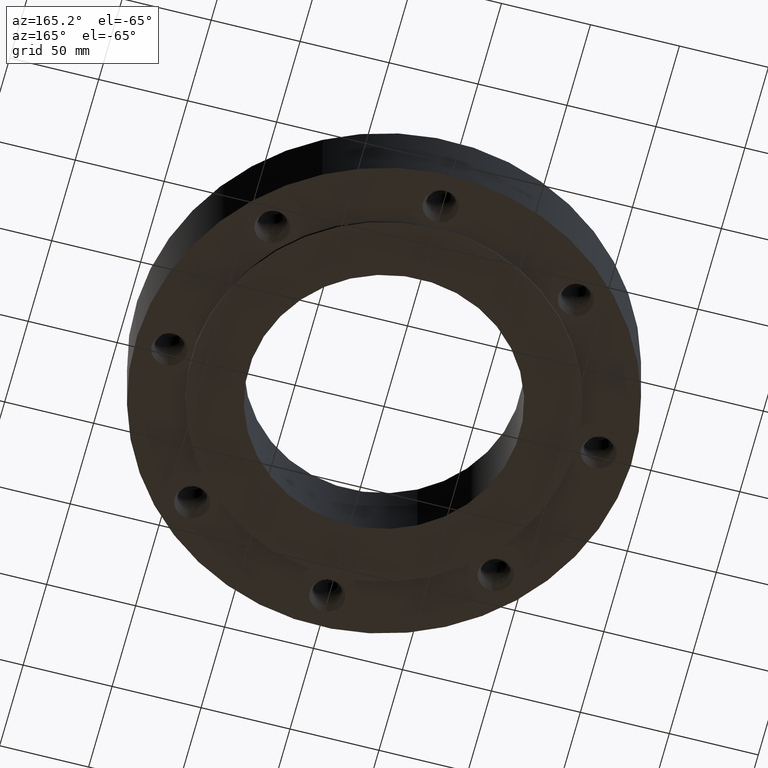
[diagram: clean part render]
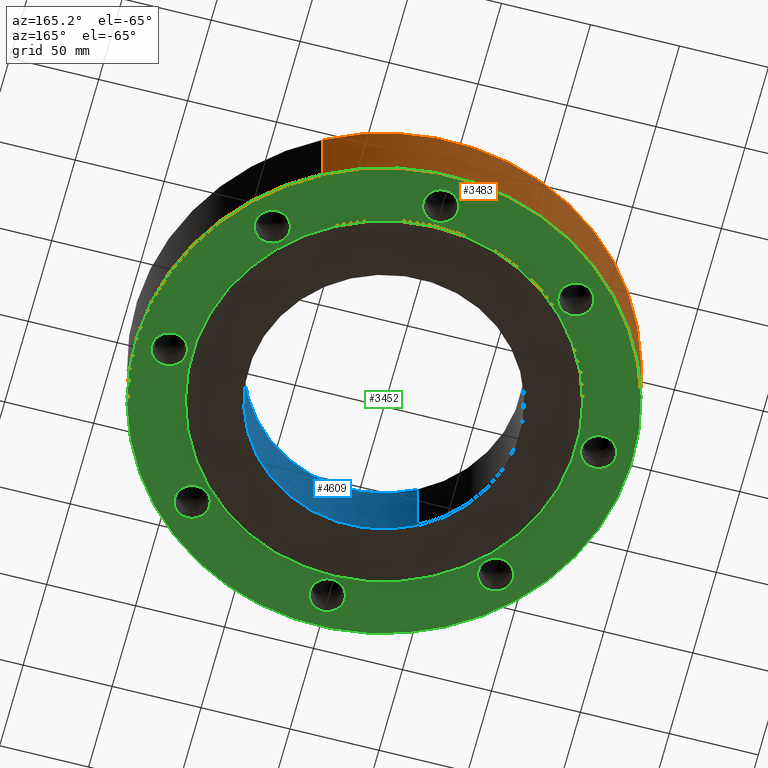
[diagram: same view with three faces highlighted in distinct colors, each labeled with its STEP entity id]
A machine part, auxiliary view with three faces highlighted in distinct colors.
Their STEP definitions:

[orange] entity #3483 — the highlighted cylindrical surface (partial cylindrical patch) has radius 139.7 mm, axis along (0, 0, -1).
#3288=AXIS2_PLACEMENT_3D('Circle Axis2P3D',#3286,#3287,$) ;
#3456=AXIS2_PLACEMENT_3D('Cylinder Axis2P3D',#3453,#3454,#3455) ;
#3467=AXIS2_PLACEMENT_3D('Circle Axis2P3D',#3465,#3466,$) ;
#3286=CARTESIAN_POINT('Axis2P3D Location',(0.,0.,0.)) ;
#3290=CARTESIAN_POINT('Vertex',(-2.63684046233,-4.82670409042,-4.22409264172E-014)) ;
#3292=CARTESIAN_POINT('Vertex',(2.63684046233,4.82670409042,-4.22409264172E-014)) ;
#3453=CARTESIAN_POINT('Axis2P3D Location',(0.,0.,0.843750000003)) ;
#3458=CARTESIAN_POINT('Line Origine',(-2.63684046233,-4.82670409042,0.875000000003)) ;
#3462=CARTESIAN_POINT('Vertex',(-2.63684046233,-4.82670409042,1.75000000001)) ;
#3465=CARTESIAN_POINT('Axis2P3D Location',(0.,0.,1.75000000001)) ;
#3469=CARTESIAN_POINT('Vertex',(2.63684046233,4.82670409042,1.75000000001)) ;
#3472=CARTESIAN_POINT('Line Origine',(2.63684046233,4.82670409042,0.875000000003)) ;
#3287=DIRECTION('Axis2P3D Direction',(0.,0.,-0.0393700787402)) ;
#3454=DIRECTION('Axis2P3D Direction',(0.,0.,-0.0393700787402)) ;
#3455=DIRECTION('Axis2P3D XDirection',(0.0188750212049,0.0345504945626,0.)) ;
#3459=DIRECTION('Vector Direction',(0.,0.,-0.0393700787402)) ;
#3466=DIRECTION('Axis2P3D Direction',(0.,0.,-0.0393700787402)) ;
#3473=DIRECTION('Vector Direction',(0.,0.,-0.0393700787402)) ;
#3460=VECTOR('Line Direction',#3459,0.0393700787402) ;
#3474=VECTOR('Line Direction',#3473,0.0393700787402) ;
#3478=ORIENTED_EDGE('',*,*,#3294,.F.) ;
#3479=ORIENTED_EDGE('',*,*,#3464,.T.) ;
#3480=ORIENTED_EDGE('',*,*,#3471,.T.) ;
#3481=ORIENTED_EDGE('',*,*,#3476,.F.) ;
#3483=ADVANCED_FACE('PartBody',(#3482),#3457,.T.) ;
#3289=CIRCLE('generated circle',#3288,5.50000000002) ;
#3468=CIRCLE('generated circle',#3467,5.50000000002) ;
#3457=CYLINDRICAL_SURFACE('generated cylinder',#3456,5.50000000002) ;
#3294=EDGE_CURVE('',#3291,#3293,#3289,.T.) ;
#3464=EDGE_CURVE('',#3291,#3463,#3461,.F.) ;
#3471=EDGE_CURVE('',#3463,#3470,#3468,.T.) ;
#3476=EDGE_CURVE('',#3293,#3470,#3475,.F.) ;
#3477=EDGE_LOOP('',(#3478,#3479,#3480,#3481)) ;
#3482=FACE_OUTER_BOUND('',#3477,.T.) ;
#3461=LINE('Line',#3458,#3460) ;
#3475=LINE('Line',#3472,#3474) ;
#3291=VERTEX_POINT('',#3290) ;
#3293=VERTEX_POINT('',#3292) ;
#3463=VERTEX_POINT('',#3462) ;
#3470=VERTEX_POINT('',#3469) ;

[blue] entity #4609 — the highlighted cylindrical surface (partial cylindrical patch) has radius 76.2 mm, axis along (0, 0, -1).
#4562=AXIS2_PLACEMENT_3D('Circle Axis2P3D',#4560,#4561,$) ;
#4582=AXIS2_PLACEMENT_3D('Cylinder Axis2P3D',#4579,#4580,#4581) ;
#4586=AXIS2_PLACEMENT_3D('Circle Axis2P3D',#4584,#4585,$) ;
#4560=CARTESIAN_POINT('Axis2P3D Location',(0.,0.,-0.0625000000003)) ;
#4564=CARTESIAN_POINT('Vertex',(1.43827661582,2.63274768568,-0.0625000000002)) ;
#4566=CARTESIAN_POINT('Vertex',(-1.43827661582,-2.63274768568,-0.0625000000002)) ;
#4579=CARTESIAN_POINT('Axis2P3D Location',(0.,0.,0.843750000003)) ;
#4584=CARTESIAN_POINT('Axis2P3D Location',(0.,0.,1.75000000001)) ;
#4588=CARTESIAN_POINT('Vertex',(1.43827661582,2.63274768568,1.75000000001)) ;
#4590=CARTESIAN_POINT('Vertex',(-1.43827661582,-2.63274768568,1.75000000001)) ;
#4593=CARTESIAN_POINT('Line Origine',(1.43827661582,2.63274768568,0.843750000003)) ;
#4598=CARTESIAN_POINT('Line Origine',(-1.43827661582,-2.63274768568,0.843750000003)) ;
#4561=DIRECTION('Axis2P3D Direction',(0.,0.,-0.0393700787402)) ;
#4580=DIRECTION('Axis2P3D Direction',(0.,0.,-0.0393700787402)) ;
#4581=DIRECTION('Axis2P3D XDirection',(-0.0188750212049,-0.0345504945626,0.)) ;
#4585=DIRECTION('Axis2P3D Direction',(0.,0.,-0.0393700787402)) ;
#4594=DIRECTION('Vector Direction',(0.,0.,-0.0393700787402)) ;
#4599=DIRECTION('Vector Direction',(0.,0.,-0.0393700787402)) ;
#4595=VECTOR('Line Direction',#4594,0.0393700787402) ;
#4600=VECTOR('Line Direction',#4599,0.0393700787402) ;
#4604=ORIENTED_EDGE('',*,*,#4592,.F.) ;
#4605=ORIENTED_EDGE('',*,*,#4597,.T.) ;
#4606=ORIENTED_EDGE('',*,*,#4568,.T.) ;
#4607=ORIENTED_EDGE('',*,*,#4602,.F.) ;
#4609=ADVANCED_FACE('PartBody',(#4608),#4583,.F.) ;
#4563=CIRCLE('generated circle',#4562,3.00000000001) ;
#4587=CIRCLE('generated circle',#4586,3.00000000001) ;
#4583=CYLINDRICAL_SURFACE('generated cylinder',#4582,3.00000000001) ;
#4568=EDGE_CURVE('',#4565,#4567,#4563,.T.) ;
#4592=EDGE_CURVE('',#4589,#4591,#4587,.T.) ;
#4597=EDGE_CURVE('',#4589,#4565,#4596,.T.) ;
#4602=EDGE_CURVE('',#4591,#4567,#4601,.T.) ;
#4603=EDGE_LOOP('',(#4604,#4605,#4606,#4607)) ;
#4608=FACE_OUTER_BOUND('',#4603,.T.) ;
#4596=LINE('Line',#4593,#4595) ;
#4601=LINE('Line',#4598,#4600) ;
#4565=VERTEX_POINT('',#4564) ;
#4567=VERTEX_POINT('',#4566) ;
#4589=VERTEX_POINT('',#4588) ;
#4591=VERTEX_POINT('',#4590) ;

[green] entity #3452 — the highlighted planar face has unit normal (0, 0, -1).
#3206=AXIS2_PLACEMENT_3D('Circle Axis2P3D',#3204,#3205,$) ;
#3270=AXIS2_PLACEMENT_3D('Circle Axis2P3D',#3268,#3269,$) ;
#3284=AXIS2_PLACEMENT_3D('Plane Axis2P3D',#3281,#3282,#3283) ;
#3288=AXIS2_PLACEMENT_3D('Circle Axis2P3D',#3286,#3287,$) ;
#3297=AXIS2_PLACEMENT_3D('Circle Axis2P3D',#3295,#3296,$) ;
#3310=AXIS2_PLACEMENT_3D('Circle Axis2P3D',#3308,#3309,$) ;
#3319=AXIS2_PLACEMENT_3D('Circle Axis2P3D',#3317,#3318,$) ;
#3328=AXIS2_PLACEMENT_3D('Circle Axis2P3D',#3326,#3327,$) ;
#3337=AXIS2_PLACEMENT_3D('Circle Axis2P3D',#3335,#3336,$) ;
#3346=AXIS2_PLACEMENT_3D('Circle Axis2P3D',#3344,#3345,$) ;
#3355=AXIS2_PLACEMENT_3D('Circle Axis2P3D',#3353,#3354,$) ;
#3364=AXIS2_PLACEMENT_3D('Circle Axis2P3D',#3362,#3363,$) ;
#3373=AXIS2_PLACEMENT_3D('Circle Axis2P3D',#3371,#3372,$) ;
#3382=AXIS2_PLACEMENT_3D('Circle Axis2P3D',#3380,#3381,$) ;
#3391=AXIS2_PLACEMENT_3D('Circle Axis2P3D',#3389,#3390,$) ;
#3400=AXIS2_PLACEMENT_3D('Circle Axis2P3D',#3398,#3399,$) ;
#3409=AXIS2_PLACEMENT_3D('Circle Axis2P3D',#3407,#3408,$) ;
#3418=AXIS2_PLACEMENT_3D('Circle Axis2P3D',#3416,#3417,$) ;
#3427=AXIS2_PLACEMENT_3D('Circle Axis2P3D',#3425,#3426,$) ;
#3436=AXIS2_PLACEMENT_3D('Circle Axis2P3D',#3434,#3435,$) ;
#3445=AXIS2_PLACEMENT_3D('Circle Axis2P3D',#3443,#3444,$) ;
#3201=CARTESIAN_POINT('Vertex',(3.69925924466,3.54477431963,-2.01064012334E-016)) ;
#3204=CARTESIAN_POINT('Axis2P3D Location',(3.35875721065,3.35875721065,0.)) ;
#3208=CARTESIAN_POINT('Vertex',(3.01825517663,3.17274010167,0.)) ;
#3268=CARTESIAN_POINT('Axis2P3D Location',(3.35875721065,3.35875721065,0.)) ;
#3281=CARTESIAN_POINT('Axis2P3D Location',(0.,5.50000000002,0.)) ;
#3286=CARTESIAN_POINT('Axis2P3D Location',(0.,0.,0.)) ;
#3290=CARTESIAN_POINT('Vertex',(-2.63684046233,-4.82670409042,-4.22409264172E-014)) ;
#3292=CARTESIAN_POINT('Vertex',(2.63684046233,4.82670409042,-4.22409264172E-014)) ;
#3295=CARTESIAN_POINT('Axis2P3D Location',(0.,0.,0.)) ;
#3308=CARTESIAN_POINT('Axis2P3D Location',(0.,0.,0.)) ;
#3312=CARTESIAN_POINT('Vertex',(2.03755853908,3.72972588805,-3.06316651834E-014)) ;
#3314=CARTESIAN_POINT('Vertex',(-2.03755853908,-3.72972588805,-3.06316651834E-014)) ;
#3317=CARTESIAN_POINT('Axis2P3D Location',(0.,0.,0.)) ;
#3326=CARTESIAN_POINT('Axis2P3D Location',(4.75000000002,0.,0.)) ;
#3330=CARTESIAN_POINT('Vertex',(5.12230525645,-0.109237338084,0.)) ;
#3332=CARTESIAN_POINT('Vertex',(4.37769474358,0.109237338084,0.)) ;
#3335=CARTESIAN_POINT('Axis2P3D Location',(4.75000000002,1.1189649382E-015,0.)) ;
#3344=CARTESIAN_POINT('Axis2P3D Location',(3.35875721065,-3.35875721065,0.)) ;
#3348=CARTESIAN_POINT('Vertex',(3.54477431963,-3.69925924466,0.)) ;
#3350=CARTESIAN_POINT('Vertex',(3.17274010167,-3.01825517663,0.)) ;
#3353=CARTESIAN_POINT('Axis2P3D Location',(3.35875721065,-3.35875721065,0.)) ;
#3362=CARTESIAN_POINT('Axis2P3D Location',(1.43367382708E-015,-4.75000000002,0.)) ;
#3366=CARTESIAN_POINT('Vertex',(-0.109237338084,-5.12230525645,0.)) ;
#3368=CARTESIAN_POINT('Vertex',(0.109237338084,-4.37769474358,0.)) ;
#3371=CARTESIAN_POINT('Axis2P3D Location',(9.09159012291E-016,-4.75000000002,0.)) ;
#3380=CARTESIAN_POINT('Axis2P3D Location',(-3.35875721065,-3.35875721065,0.)) ;
#3384=CARTESIAN_POINT('Vertex',(-3.69925924466,-3.54477431963,0.)) ;
#3386=CARTESIAN_POINT('Vertex',(-3.01825517663,-3.17274010167,-8.74191357973E-018)) ;
#3389=CARTESIAN_POINT('Axis2P3D Location',(-3.35875721065,-3.35875721065,0.)) ;
#3398=CARTESIAN_POINT('Axis2P3D Location',(-4.75000000002,-1.1189649382E-015,0.)) ;
#3402=CARTESIAN_POINT('Vertex',(-5.12230525645,0.109237338084,0.)) ;
#3404=CARTESIAN_POINT('Vertex',(-4.37769474358,-0.109237338084,0.)) ;
#3407=CARTESIAN_POINT('Axis2P3D Location',(-4.75000000002,-2.23792987641E-015,0.)) ;
#3416=CARTESIAN_POINT('Axis2P3D Location',(-3.35875721065,3.35875721065,0.)) ;
#3420=CARTESIAN_POINT('Vertex',(-3.54477431963,3.69925924466,0.)) ;
#3422=CARTESIAN_POINT('Vertex',(-3.17274010167,3.01825517663,-8.74191357973E-018)) ;
#3425=CARTESIAN_POINT('Axis2P3D Location',(-3.35875721065,3.35875721065,0.)) ;
#3434=CARTESIAN_POINT('Axis2P3D Location',(-2.86734765415E-015,4.75000000002,0.)) ;
#3438=CARTESIAN_POINT('Vertex',(0.109237338084,5.12230525645,0.)) ;
#3440=CARTESIAN_POINT('Vertex',(-0.109237338084,4.37769474358,-8.74191357973E-018)) ;
#3443=CARTESIAN_POINT('Axis2P3D Location',(-2.44773580232E-015,4.75000000002,0.)) ;
#3205=DIRECTION('Axis2P3D Direction',(0.,0.,-0.0393700787402)) ;
#3269=DIRECTION('Axis2P3D Direction',(0.,0.,-0.0393700787402)) ;
#3282=DIRECTION('Axis2P3D Direction',(0.,0.,-0.0393700787402)) ;
#3283=DIRECTION('Axis2P3D XDirection',(0.0393700787402,0.,0.)) ;
#3287=DIRECTION('Axis2P3D Direction',(0.,0.,-0.0393700787402)) ;
#3296=DIRECTION('Axis2P3D Direction',(0.,0.,-0.0393700787402)) ;
#3309=DIRECTION('Axis2P3D Direction',(0.,0.,-0.0393700787402)) ;
#3318=DIRECTION('Axis2P3D Direction',(0.,0.,-0.0393700787402)) ;
#3327=DIRECTION('Axis2P3D Direction',(0.,0.,-0.0393700787402)) ;
#3336=DIRECTION('Axis2P3D Direction',(0.,0.,-0.0393700787402)) ;
#3345=DIRECTION('Axis2P3D Direction',(0.,0.,-0.0393700787402)) ;
#3354=DIRECTION('Axis2P3D Direction',(0.,0.,-0.0393700787402)) ;
#3363=DIRECTION('Axis2P3D Direction',(0.,0.,-0.0393700787402)) ;
#3372=DIRECTION('Axis2P3D Direction',(0.,0.,-0.0393700787402)) ;
#3381=DIRECTION('Axis2P3D Direction',(0.,0.,-0.0393700787402)) ;
#3390=DIRECTION('Axis2P3D Direction',(0.,0.,-0.0393700787402)) ;
#3399=DIRECTION('Axis2P3D Direction',(0.,0.,-0.0393700787402)) ;
#3408=DIRECTION('Axis2P3D Direction',(0.,0.,-0.0393700787402)) ;
#3417=DIRECTION('Axis2P3D Direction',(0.,0.,-0.0393700787402)) ;
#3426=DIRECTION('Axis2P3D Direction',(0.,0.,-0.0393700787402)) ;
#3435=DIRECTION('Axis2P3D Direction',(0.,0.,-0.0393700787402)) ;
#3444=DIRECTION('Axis2P3D Direction',(0.,0.,-0.0393700787402)) ;
#3301=ORIENTED_EDGE('',*,*,#3294,.T.) ;
#3302=ORIENTED_EDGE('',*,*,#3299,.T.) ;
#3305=ORIENTED_EDGE('',*,*,#3272,.F.) ;
#3306=ORIENTED_EDGE('',*,*,#3210,.F.) ;
#3323=ORIENTED_EDGE('',*,*,#3316,.F.) ;
#3324=ORIENTED_EDGE('',*,*,#3321,.F.) ;
#3341=ORIENTED_EDGE('',*,*,#3334,.F.) ;
#3342=ORIENTED_EDGE('',*,*,#3339,.F.) ;
#3359=ORIENTED_EDGE('',*,*,#3352,.F.) ;
#3360=ORIENTED_EDGE('',*,*,#3357,.F.) ;
#3377=ORIENTED_EDGE('',*,*,#3370,.F.) ;
#3378=ORIENTED_EDGE('',*,*,#3375,.F.) ;
#3395=ORIENTED_EDGE('',*,*,#3388,.F.) ;
#3396=ORIENTED_EDGE('',*,*,#3393,.F.) ;
#3413=ORIENTED_EDGE('',*,*,#3406,.F.) ;
#3414=ORIENTED_EDGE('',*,*,#3411,.F.) ;
#3431=ORIENTED_EDGE('',*,*,#3424,.F.) ;
#3432=ORIENTED_EDGE('',*,*,#3429,.F.) ;
#3449=ORIENTED_EDGE('',*,*,#3442,.F.) ;
#3450=ORIENTED_EDGE('',*,*,#3447,.F.) ;
#3307=FACE_BOUND('',#3304,.T.) ;
#3325=FACE_BOUND('',#3322,.T.) ;
#3343=FACE_BOUND('',#3340,.T.) ;
#3361=FACE_BOUND('',#3358,.T.) ;
#3379=FACE_BOUND('',#3376,.T.) ;
#3397=FACE_BOUND('',#3394,.T.) ;
#3415=FACE_BOUND('',#3412,.T.) ;
#3433=FACE_BOUND('',#3430,.T.) ;
#3451=FACE_BOUND('',#3448,.T.) ;
#3452=ADVANCED_FACE('PartBody',(#3303,#3307,#3325,#3343,#3361,#3379,#3397,#3415,#3433,#3451),#3285,.T.) ;
#3207=CIRCLE('generated circle',#3206,0.388000000002) ;
#3271=CIRCLE('generated circle',#3270,0.388000000002) ;
#3289=CIRCLE('generated circle',#3288,5.50000000002) ;
#3298=CIRCLE('generated circle',#3297,5.50000000002) ;
#3311=CIRCLE('generated circle',#3310,4.25000000002) ;
#3320=CIRCLE('generated circle',#3319,4.25000000002) ;
#3329=CIRCLE('generated circle',#3328,0.388000000002) ;
#3338=CIRCLE('generated circle',#3337,0.388000000002) ;
#3347=CIRCLE('generated circle',#3346,0.388000000002) ;
#3356=CIRCLE('generated circle',#3355,0.388000000002) ;
#3365=CIRCLE('generated circle',#3364,0.388000000002) ;
#3374=CIRCLE('generated circle',#3373,0.388000000002) ;
#3383=CIRCLE('generated circle',#3382,0.388000000002) ;
#3392=CIRCLE('generated circle',#3391,0.388000000002) ;
#3401=CIRCLE('generated circle',#3400,0.388000000002) ;
#3410=CIRCLE('generated circle',#3409,0.388000000002) ;
#3419=CIRCLE('generated circle',#3418,0.388000000002) ;
#3428=CIRCLE('generated circle',#3427,0.388000000002) ;
#3437=CIRCLE('generated circle',#3436,0.388000000002) ;
#3446=CIRCLE('generated circle',#3445,0.388000000002) ;
#3210=EDGE_CURVE('',#3202,#3209,#3207,.T.) ;
#3272=EDGE_CURVE('',#3209,#3202,#3271,.T.) ;
#3294=EDGE_CURVE('',#3291,#3293,#3289,.T.) ;
#3299=EDGE_CURVE('',#3293,#3291,#3298,.T.) ;
#3316=EDGE_CURVE('',#3313,#3315,#3311,.T.) ;
#3321=EDGE_CURVE('',#3315,#3313,#3320,.T.) ;
#3334=EDGE_CURVE('',#3331,#3333,#3329,.T.) ;
#3339=EDGE_CURVE('',#3333,#3331,#3338,.T.) ;
#3352=EDGE_CURVE('',#3349,#3351,#3347,.T.) ;
#3357=EDGE_CURVE('',#3351,#3349,#3356,.T.) ;
#3370=EDGE_CURVE('',#3367,#3369,#3365,.T.) ;
#3375=EDGE_CURVE('',#3369,#3367,#3374,.T.) ;
#3388=EDGE_CURVE('',#3385,#3387,#3383,.T.) ;
#3393=EDGE_CURVE('',#3387,#3385,#3392,.T.) ;
#3406=EDGE_CURVE('',#3403,#3405,#3401,.T.) ;
#3411=EDGE_CURVE('',#3405,#3403,#3410,.T.) ;
#3424=EDGE_CURVE('',#3421,#3423,#3419,.T.) ;
#3429=EDGE_CURVE('',#3423,#3421,#3428,.T.) ;
#3442=EDGE_CURVE('',#3439,#3441,#3437,.T.) ;
#3447=EDGE_CURVE('',#3441,#3439,#3446,.T.) ;
#3300=EDGE_LOOP('',(#3301,#3302)) ;
#3304=EDGE_LOOP('',(#3305,#3306)) ;
#3322=EDGE_LOOP('',(#3323,#3324)) ;
#3340=EDGE_LOOP('',(#3341,#3342)) ;
#3358=EDGE_LOOP('',(#3359,#3360)) ;
#3376=EDGE_LOOP('',(#3377,#3378)) ;
#3394=EDGE_LOOP('',(#3395,#3396)) ;
#3412=EDGE_LOOP('',(#3413,#3414)) ;
#3430=EDGE_LOOP('',(#3431,#3432)) ;
#3448=EDGE_LOOP('',(#3449,#3450)) ;
#3303=FACE_OUTER_BOUND('',#3300,.T.) ;
#3285=PLANE('',#3284) ;
#3202=VERTEX_POINT('',#3201) ;
#3209=VERTEX_POINT('',#3208) ;
#3291=VERTEX_POINT('',#3290) ;
#3293=VERTEX_POINT('',#3292) ;
#3313=VERTEX_POINT('',#3312) ;
#3315=VERTEX_POINT('',#3314) ;
#3331=VERTEX_POINT('',#3330) ;
#3333=VERTEX_POINT('',#3332) ;
#3349=VERTEX_POINT('',#3348) ;
#3351=VERTEX_POINT('',#3350) ;
#3367=VERTEX_POINT('',#3366) ;
#3369=VERTEX_POINT('',#3368) ;
#3385=VERTEX_POINT('',#3384) ;
#3387=VERTEX_POINT('',#3386) ;
#3403=VERTEX_POINT('',#3402) ;
#3405=VERTEX_POINT('',#3404) ;
#3421=VERTEX_POINT('',#3420) ;
#3423=VERTEX_POINT('',#3422) ;
#3439=VERTEX_POINT('',#3438) ;
#3441=VERTEX_POINT('',#3440) ;